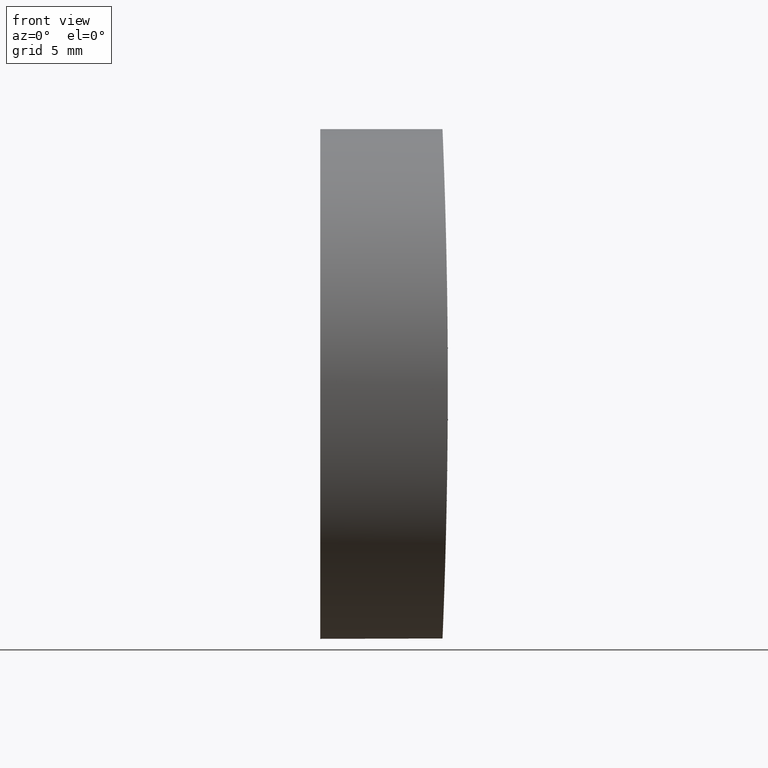
[diagram: clean part render]
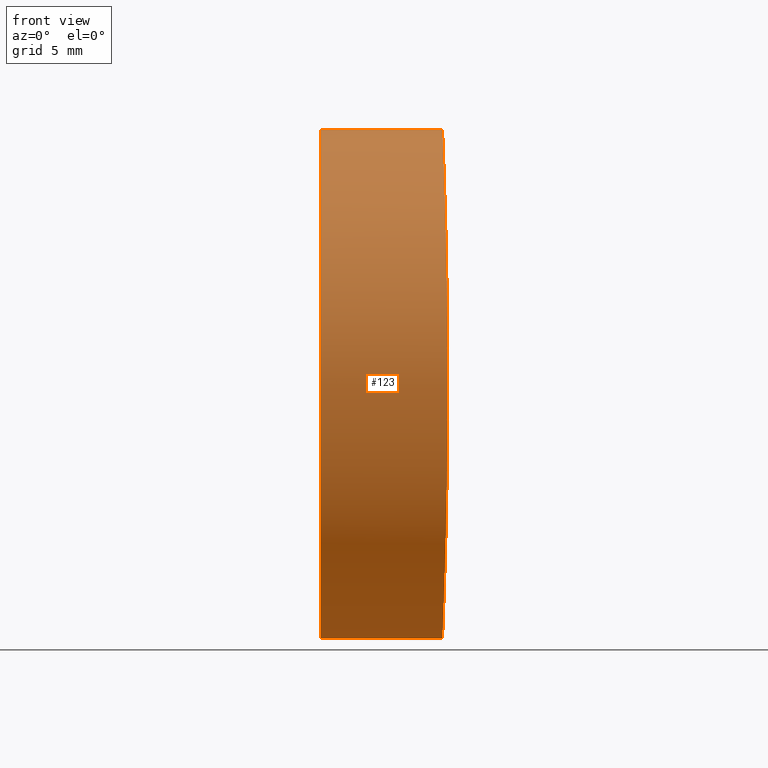
[diagram: same view with one face highlighted and labeled with its STEP entity id]
A machine part, front view. The second image highlights one B-rep face of the part: STEP entity #123.
In plain terms, the highlighted cylindrical surface (bore or boss wall) has radius 12.5 mm, axis along (-1, -0, -0).
Its self-contained STEP definition (entity closure, byte-faithful):
#1 = CARTESIAN_POINT ( 'NONE',  ( 6.172092210281266311, -10.16255016743778050, -7.289695950243486600 ) ) ;
#3 = CARTESIAN_POINT ( 'NONE',  ( 6.065161412279568509, -6.262824882412583172, 10.82565168110296305 ) ) ;
#5 = CARTESIAN_POINT ( 'NONE',  ( 0.000000000000000000, 0.000000000000000000, -12.50000000000000000 ) ) ;
#7 = B_SPLINE_CURVE_WITH_KNOTS ( 'NONE', 3,
 ( #28, #114, #110, #219, #187, #203, #30, #60, #44, #12, #43, #92, #163, #205, #10, #200, #95, #170, #73, #151, #148, #55, #128, #117, #66, #86, #18, #46, #153, #65, #102, #22, #190, #175, #70, #35, #225, #158, #159, #189, #120, #226, #207, #31, #84, #119, #138, #51, #223, #19, #36, #212, #50, #85, #155, #68, #172, #67, #33, #103, #192, #98, #1, #157, #139, #34, #105, #100, #213, #177, #16, #121, #193, #82, #194, #176, #21, #135, #140, #214, #52, #87, #209, #48, #173, #122, #3, #179, #181, #72, #25, #109, #198, #11, #89 ),
 .UNSPECIFIED., .T., .F.,
 ( 4, 2, 2, 2, 2, 2, 2, 2, 2, 1, 2, 2, 2, 2, 2, 2, 2, 2, 2, 2, 2, 2, 2, 2, 2, 2, 2, 1, 2, 2, 2, 2, 2, 2, 2, 2, 2, 2, 2, 2, 2, 2, 2, 2, 2, 1, 2, 2, 4 ),
 ( 0.000000000000000000, 0.002442531111230368188, 0.003663796666845552281, 0.004885062222460736375, 0.007327593333691107165, 0.008548858889306291259, 0.009770124444921474485, 0.01221265555615183400, 0.01343392111176701549, 0.01465518666738219872, 0.01587645222299738021, 0.01709771777861256170, 0.01954024888984292468, 0.02076151444545810618, 0.02198278000107328767, 0.02442531111230365065, 0.02564657666791883214, 0.02686784222353401017, 0.02931037333476437315, 0.03175290444599473960, 0.03297417000160992456, 0.03419543555722510952, 0.03663796666845547251, 0.03785923222407065747, 0.03908049777968583549, 0.04152302889091620541, 0.04274429444653139037, 0.04396556000214657534, 0.04518682555776176030, 0.04640809111337694526, 0.04885062222460730824, 0.05007188778022249320, 0.05129315333583767816, 0.05373568444706804809, 0.05495695000268323305, 0.05617821555829841801, 0.05862074666952878099, 0.05984201222514396595, 0.06106327778075915091, 0.06228454333637433588, 0.06350580889198952084, 0.06594834000321989076, 0.06839087111445027456, 0.07083340222568064448, 0.07205466778129585026, 0.07327593333691102828, 0.07449719889252620630, 0.07571846444814139820, 0.07816099555937178200 ),
 .UNSPECIFIED. ) ;
#8 = CARTESIAN_POINT ( 'NONE',  ( 0.000000000000000000, 0.000000000000000000, 0.000000000000000000 ) ) ;
#9 = EDGE_CURVE ( 'NONE', #217, #217, #7, .T. ) ;
#10 = CARTESIAN_POINT ( 'NONE',  ( 6.164155220372254718, 9.933538833895530828, 7.632187914930398165 ) ) ;
#11 = CARTESIAN_POINT ( 'NONE',  ( 5.999999999999947597, -0.8259064158690133661, 12.49999999999999289 ) ) ;
#12 = CARTESIAN_POINT ( 'NONE',  ( 6.088156928034521798, 7.280235507007647655, 10.16931558749629438 ) ) ;
#14 = AXIS2_PLACEMENT_3D ( 'NONE', #161, #56, #218 ) ;
#16 = CARTESIAN_POINT ( 'NONE',  ( 6.260494798895066104, -12.49916087149522426, -0.8371110847458546056 ) ) ;
#18 = CARTESIAN_POINT ( 'NONE',  ( 6.256381917856987940, 12.40020304066437795, -1.629266377465260263 ) ) ;
#19 = CARTESIAN_POINT ( 'NONE',  ( 6.003303559869467954, -1.622169408448355332, -12.42148493090495975 ) ) ;
#21 = CARTESIAN_POINT ( 'NONE',  ( 6.243476200992446934, -12.08472163598673887, 3.221401904591348675 ) ) ;
#22 = CARTESIAN_POINT ( 'NONE',  ( 6.209759111264770759, 11.21824188934110644, -5.528976534523013520 ) ) ;
#25 = CARTESIAN_POINT ( 'NONE',  ( 6.017411330426064353, -3.255643639712995530, 12.07549936659794376 ) ) ;
#27 = CYLINDRICAL_SURFACE ( 'NONE', #14, 12.50000000000000000 ) ;
#28 = CARTESIAN_POINT ( 'NONE',  ( 5.999999999999948486, -5.421010862427522170E-17, 12.49999999999999645 ) ) ;
#30 = CARTESIAN_POINT ( 'NONE',  ( 6.032146540500496812, 4.407963218913775627, 11.70417354482541583 ) ) ;
#31 = CARTESIAN_POINT ( 'NONE',  ( 6.016538457712608867, 3.250241278125337363, -12.09763456853308483 ) ) ;
#33 = CARTESIAN_POINT ( 'NONE',  ( 6.112998831520989995, -8.253455285152918819, -9.423088617409611345 ) ) ;
#34 = CARTESIAN_POINT ( 'NONE',  ( 6.228192044709865094, -11.69990824334919211, -4.419229952103910897 ) ) ;
#35 = CARTESIAN_POINT ( 'NONE',  ( 6.147562447908028638, 9.426345503512086665, -8.250738773842421381 ) ) ;
#36 = CARTESIAN_POINT ( 'NONE',  ( 6.013085691541188993, -2.830825115543369463, -12.18216358184415959 ) ) ;
#43 = CARTESIAN_POINT ( 'NONE',  ( 6.096400067969772074, 7.611323619339332325, 9.924086430452597085 ) ) ;
#44 = CARTESIAN_POINT ( 'NONE',  ( 6.064574979207876027, 6.261197412602466983, 10.84963783648011493 ) ) ;
#46 = CARTESIAN_POINT ( 'NONE',  ( 6.253872513546668621, 12.33958760181732650, -2.037542550346832293 ) ) ;
#48 = CARTESIAN_POINT ( 'NONE',  ( 6.113439520441835917, -8.269427179721283494, 9.409156232630110139 ) ) ;
#50 = CARTESIAN_POINT ( 'NONE',  ( 6.026629055663052625, -4.016244668584105781, -11.84429572924562457 ) ) ;
#51 = CARTESIAN_POINT ( 'NONE',  ( 6.000006082017113052, 0.4123428873528892091, -12.49985403157840480 ) ) ;
#52 = CARTESIAN_POINT ( 'NONE',  ( 6.196104115395860035, -10.85491073611437862, 6.251967296507126903 ) ) ;
#53 = VERTEX_POINT ( 'NONE', #5 ) ;
#55 = CARTESIAN_POINT ( 'NONE',  ( 6.247316559004069347, 12.17929495832316000, 2.843227552792835233 ) ) ;
#56 = DIRECTION ( 'NONE',  ( -1.000000000000000000, -0.000000000000000000, -0.000000000000000000 ) ) ;
#57 = ORIENTED_EDGE ( 'NONE', *, *, #9, .T. ) ;
#60 = CARTESIAN_POINT ( 'NONE',  ( 6.050262206412251764, 5.543265546061107329, 11.23358711688313427 ) ) ;
#65 = CARTESIAN_POINT ( 'NONE',  ( 6.234539177238508145, 11.86450713837372106, -4.019205193448697422 ) ) ;
#66 = CARTESIAN_POINT ( 'NONE',  ( 6.260538791177335582, 12.50021576982352478, -0.4009755003058854683 ) ) ;
#67 = CARTESIAN_POINT ( 'NONE',  ( 6.096098314215999459, -7.623561101169149978, -9.940259040492264830 ) ) ;
#68 = CARTESIAN_POINT ( 'NONE',  ( 6.064732119904094887, -6.242210102682005157, -10.83752043973062840 ) ) ;
#70 = CARTESIAN_POINT ( 'NONE',  ( 6.164468682806286459, 9.942786566410990901, -7.619341139220709991 ) ) ;
#71 = CARTESIAN_POINT ( 'NONE',  ( 5.999999999999950262, 0.000000000000000000, 12.50000000000000000 ) ) ;
#72 = CARTESIAN_POINT ( 'NONE',  ( 6.026911310630080898, -4.037175072621820959, 11.83714990589002269 ) ) ;
#73 = CARTESIAN_POINT ( 'NONE',  ( 6.222903370809313550, 11.56566938623208074, 4.793904998472926948 ) ) ;
#82 = CARTESIAN_POINT ( 'NONE',  ( 6.256406990970368120, -12.40080782583506469, 1.623811552258876745 ) ) ;
#84 = CARTESIAN_POINT ( 'NONE',  ( 6.006730856827179110, 2.049093850132873484, -12.33766274556477072 ) ) ;
#85 = CARTESIAN_POINT ( 'NONE',  ( 6.037439880155496041, -4.784047013619754374, -11.56975332690495151 ) ) ;
#86 = CARTESIAN_POINT ( 'NONE',  ( 6.259716333203312111, 12.48054340850460875, -0.8096793234812096340 ) ) ;
#87 = CARTESIAN_POINT ( 'NONE',  ( 6.164699358169168697, -9.949751941555522450, 7.610428270939682882 ) ) ;
#89 = CARTESIAN_POINT ( 'NONE',  ( 5.999999999999948486, -5.421010862427522170E-17, 12.49999999999999645 ) ) ;
#91 = DIRECTION ( 'NONE',  ( 1.000000000000000000, 0.000000000000000000, 0.000000000000000000 ) ) ;
#92 = CARTESIAN_POINT ( 'NONE',  ( 6.113242425722812179, 8.248280488456932957, 9.401362013088681024 ) ) ;
#93 = DIRECTION ( 'NONE',  ( 0.000000000000000000, 0.000000000000000000, -1.000000000000000000 ) ) ;
#95 = CARTESIAN_POINT ( 'NONE',  ( 6.195542814629254380, 10.83165170539184707, 6.252413073136528610 ) ) ;
#98 = CARTESIAN_POINT ( 'NONE',  ( 6.163817854185432488, -9.916260099816531337, -7.621483797819179173 ) ) ;
#100 = CARTESIAN_POINT ( 'NONE',  ( 6.243240635178225695, -12.07888749675123030, -3.243342822267051062 ) ) ;
#102 = CARTESIAN_POINT ( 'NONE',  ( 6.216455058122312138, 11.39520469587875873, -5.154313236980678781 ) ) ;
#103 = CARTESIAN_POINT ( 'NONE',  ( 6.138476621588251803, -9.118664686788646279, -8.559555195149279427 ) ) ;
#105 = CARTESIAN_POINT ( 'NONE',  ( 6.233703734339229641, -11.83984506769126455, -4.029499298298905074 ) ) ;
#109 = CARTESIAN_POINT ( 'NONE',  ( 6.013323387754446969, -2.856105422754082301, 12.17631613809341751 ) ) ;
#110 = CARTESIAN_POINT ( 'NONE',  ( 6.003408089716231189, 1.637993522668762969, 12.41895026242207045 ) ) ;
#113 = CIRCLE ( 'NONE', #126, 12.50000000000000000 ) ;
#114 = CARTESIAN_POINT ( 'NONE',  ( 5.999999999999949374, 0.8259064158690101465, 12.50000000000000000 ) ) ;
#117 = CARTESIAN_POINT ( 'NONE',  ( 6.260511573811546882, 12.49956312022612970, 0.8219637336550531526 ) ) ;
#119 = CARTESIAN_POINT ( 'NONE',  ( 6.004214787304460899, 1.642349584077931413, -12.39849969755056236 ) ) ;
#120 = CARTESIAN_POINT ( 'NONE',  ( 6.050940186872487914, 5.540054205137916910, -11.21275619725691008 ) ) ;
#121 = CARTESIAN_POINT ( 'NONE',  ( 6.260546891141374637, -12.50041000031843019, 0.3996175532547857623 ) ) ;
#122 = CARTESIAN_POINT ( 'NONE',  ( 6.072813350052516768, -6.618080077422613172, 10.61222997801924350 ) ) ;
#123 = ADVANCED_FACE ( 'NONE', ( #199, #147 ), #27, .T. ) ;
#126 = AXIS2_PLACEMENT_3D ( 'NONE', #8, #91, #93 ) ;
#128 = CARTESIAN_POINT ( 'NONE',  ( 6.257166851213879610, 12.42013683410310598, 1.633057077183746930 ) ) ;
#133 = EDGE_LOOP ( 'NONE', ( #221 ) ) ;
#135 = CARTESIAN_POINT ( 'NONE',  ( 6.234017868852569144, -11.84778519525353957, 4.005984675123172245 ) ) ;
#138 = CARTESIAN_POINT ( 'NONE',  ( 6.000843967758331843, 0.8214849242648049055, -12.47979444645175029 ) ) ;
#139 = CARTESIAN_POINT ( 'NONE',  ( 6.210051850833262499, -11.22879243126350168, -5.552837619186312246 ) ) ;
#140 = CARTESIAN_POINT ( 'NONE',  ( 6.228528038670694045, -11.70850923513425101, 4.396480366682553154 ) ) ;
#147 = FACE_OUTER_BOUND ( 'NONE', #133, .T. ) ;
#148 = CARTESIAN_POINT ( 'NONE',  ( 6.243227981932483850, 12.07856762367350711, 3.244289262394244755 ) ) ;
#151 = CARTESIAN_POINT ( 'NONE',  ( 6.233738148818487979, 11.84071037988162445, 4.026758790578854885 ) ) ;
#152 = EDGE_LOOP ( 'NONE', ( #57 ) ) ;
#153 = CARTESIAN_POINT ( 'NONE',  ( 6.244091235019176622, 12.10043890578457848, -3.239966912943039734 ) ) ;
#155 = CARTESIAN_POINT ( 'NONE',  ( 6.050588842061338291, -5.520946592458034097, -11.22212925299074548 ) ) ;
#157 = CARTESIAN_POINT ( 'NONE',  ( 6.195719745259369304, -10.84437194123847270, -6.270404214308939572 ) ) ;
#158 = CARTESIAN_POINT ( 'NONE',  ( 6.096223618271498168, 7.627786067416673532, -9.936289720345598653 ) ) ;
#159 = CARTESIAN_POINT ( 'NONE',  ( 6.072697388643303995, 6.612692367994258191, -10.61546245203198779 ) ) ;
#161 = CARTESIAN_POINT ( 'NONE',  ( 10.00000000000000000, 0.000000000000000000, 0.000000000000000000 ) ) ;
#163 = CARTESIAN_POINT ( 'NONE',  ( 6.121763579871665861, 8.551402142976918697, 9.126320268247344103 ) ) ;
#170 = CARTESIAN_POINT ( 'NONE',  ( 6.209723687245405799, 11.21727632265126928, 5.530827843644601671 ) ) ;
#172 = CARTESIAN_POINT ( 'NONE',  ( 6.072339844302462097, -6.596658705992997973, -10.62560362193526409 ) ) ;
#173 = CARTESIAN_POINT ( 'NONE',  ( 6.096542929035568825, -7.640781343464588815, 9.926837186715463446 ) ) ;
#175 = CARTESIAN_POINT ( 'NONE',  ( 6.187992720238105981, 10.62127591781177216, -6.603358153467658198 ) ) ;
#176 = CARTESIAN_POINT ( 'NONE',  ( 6.247478621663062448, -12.18327469207713243, 2.825523070045518725 ) ) ;
#177 = CARTESIAN_POINT ( 'NONE',  ( 6.257060793881120908, -12.41756365189745104, -1.648600226482874076 ) ) ;
#179 = CARTESIAN_POINT ( 'NONE',  ( 6.050954799938475404, -5.540817423550785215, 11.21236157583269488 ) ) ;
#181 = CARTESIAN_POINT ( 'NONE',  ( 6.037756287000180855, -4.803770276356642555, 11.56157891729533205 ) ) ;
#187 = CARTESIAN_POINT ( 'NONE',  ( 6.017156708153690303, 3.232327436639756080, 12.08182125147256158 ) ) ;
#189 = CARTESIAN_POINT ( 'NONE',  ( 6.065162828890717783, 6.262917412450179633, -10.82561626974732150 ) ) ;
#190 = CARTESIAN_POINT ( 'NONE',  ( 6.195529384407273632, 10.83129180282124082, -6.253131254756368662 ) ) ;
#192 = CARTESIAN_POINT ( 'NONE',  ( 6.146991434880309413, -9.393699622170178287, -8.256975054829320371 ) ) ;
#193 = CARTESIAN_POINT ( 'NONE',  ( 6.259708575517895390, -12.48035582275725552, 0.8108743601265366863 ) ) ;
#194 = CARTESIAN_POINT ( 'NONE',  ( 6.253943948625184213, -12.34131826585055336, 2.026727979515298372 ) ) ;
#197 = EDGE_CURVE ( 'NONE', #53, #53, #113, .T. ) ;
#198 = CARTESIAN_POINT ( 'NONE',  ( 6.003410062072230602, -1.643154830855610093, 12.41894092604331057 ) ) ;
#199 = FACE_OUTER_BOUND ( 'NONE', #152, .T. ) ;
#200 = CARTESIAN_POINT ( 'NONE',  ( 6.187906436522402132, 10.61888907579201380, 6.607425090710838944 ) ) ;
#203 = CARTESIAN_POINT ( 'NONE',  ( 6.026646846752836240, 4.017662021043620690, 11.84384807800453565 ) ) ;
#205 = CARTESIAN_POINT ( 'NONE',  ( 6.147254438133583854, 9.416135472669971307, 8.261428070161709769 ) ) ;
#207 = CARTESIAN_POINT ( 'NONE',  ( 6.026105155910480349, 4.029400433164742168, -11.86111264109678309 ) ) ;
#209 = CARTESIAN_POINT ( 'NONE',  ( 6.147448925834748223, -9.422324365862493778, 8.254420054445331445 ) ) ;
#212 = CARTESIAN_POINT ( 'NONE',  ( 6.017162214600251247, -3.232728130425744695, -12.08168164596760263 ) ) ;
#213 = CARTESIAN_POINT ( 'NONE',  ( 6.247275268054523600, -12.17827526859036169, -2.847025451477626312 ) ) ;
#214 = CARTESIAN_POINT ( 'NONE',  ( 6.210413275165082680, -11.23841860929165115, 5.533611809453583774 ) ) ;
#217 = VERTEX_POINT ( 'NONE', #71 ) ;
#218 = DIRECTION ( 'NONE',  ( 0.000000000000000000, 0.000000000000000000, 1.000000000000000000 ) ) ;
#219 = CARTESIAN_POINT ( 'NONE',  ( 6.013141541545035551, 2.836247057000147898, 12.18078567793812006 ) ) ;
#221 = ORIENTED_EDGE ( 'NONE', *, *, #197, .T. ) ;
#223 = CARTESIAN_POINT ( 'NONE',  ( 5.999987934932308420, -0.8113388596590753732, -12.50028956164123528 ) ) ;
#225 = CARTESIAN_POINT ( 'NONE',  ( 6.113171134654282746, 8.260155480960932550, -9.418094886765599583 ) ) ;
#226 = CARTESIAN_POINT ( 'NONE',  ( 6.044232422751521838, 5.165356821133603837, -11.39021967058854301 ) ) ;